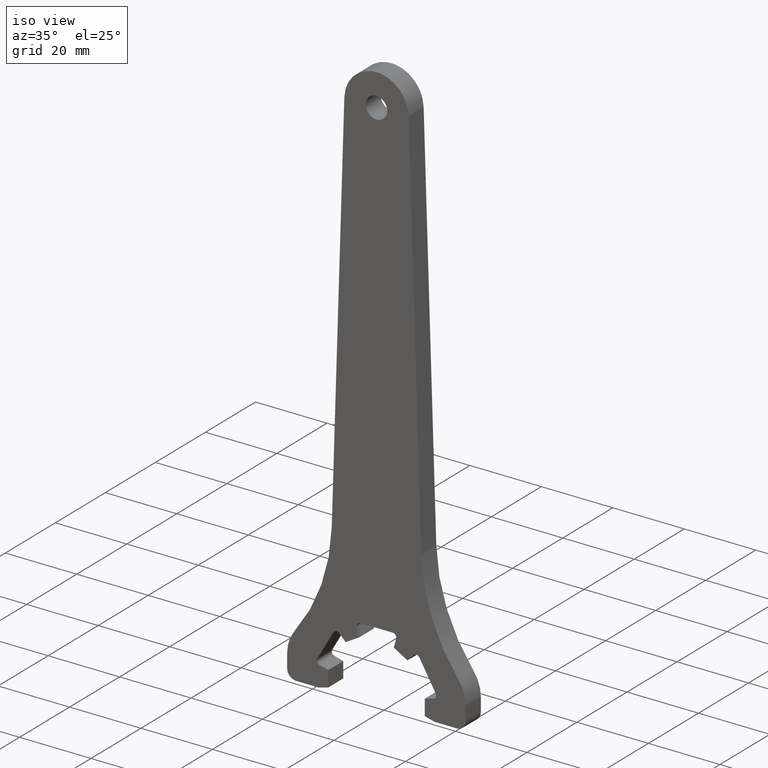
[diagram: clean part render]
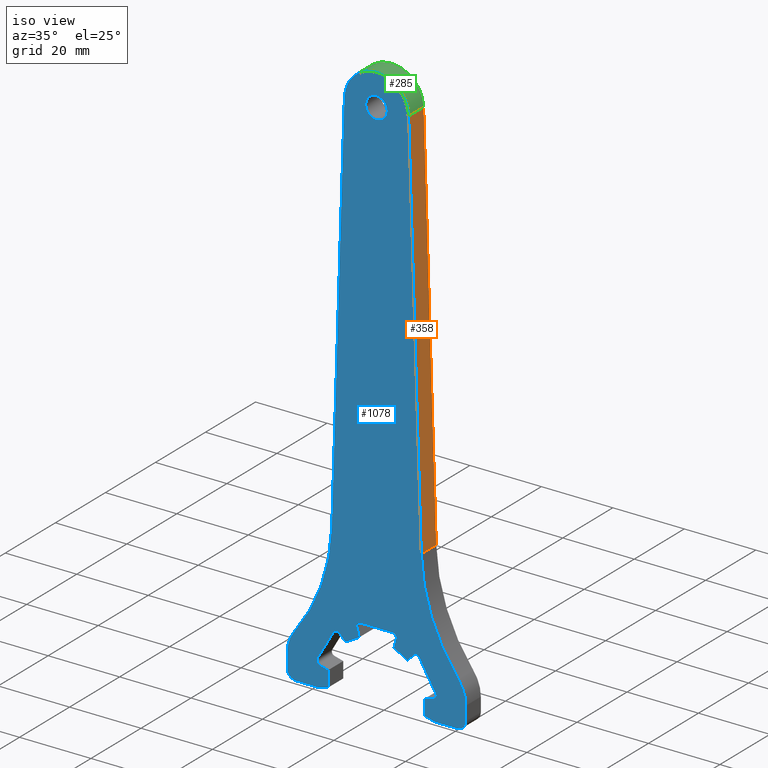
[diagram: same view with three faces highlighted in distinct colors, each labeled with its STEP entity id]
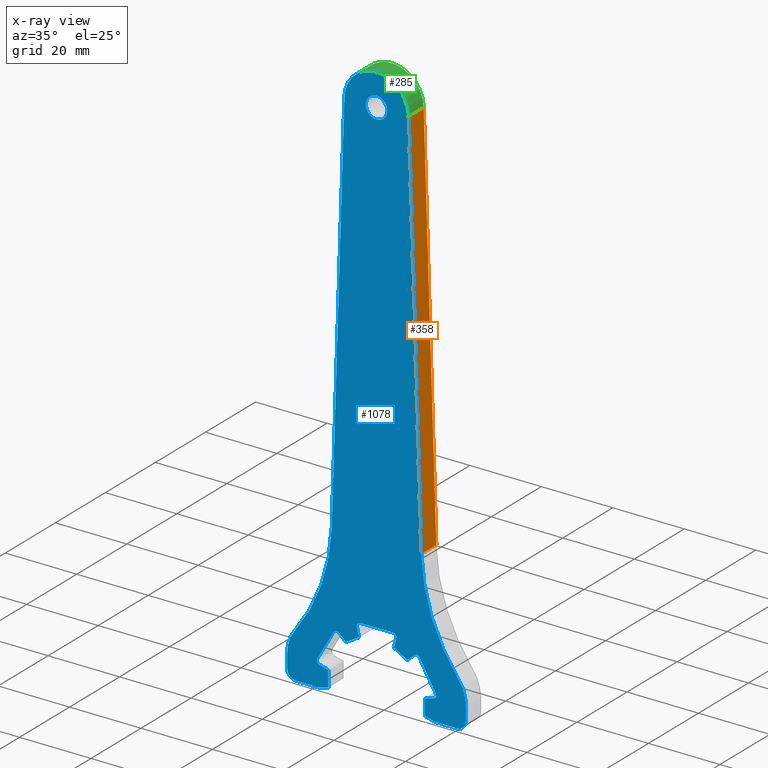
[diagram: x-ray of the same camera — body ghosted, the three highlighted faces saturated]
A machine part, iso view with three faces highlighted in distinct colors.
The next image is the same camera in x-ray (body ghosted, the three faces saturated) — at least one of them is partly hidden behind the body in this view.
Their STEP definitions:

[orange] entity #358 — the highlighted planar face has unit normal (-0.9995, 0, -0.0321).
#40 = CARTESIAN_POINT ( 'NONE',  ( 8.995353281733338600, 3.000000000000000000, 148.3557527634169700 ) ) ;
#86 = LINE ( 'NONE', #1297, #350 ) ;
#104 = ORIENTED_EDGE ( 'NONE', *, *, #1181, .T. ) ;
#155 = DIRECTION ( 'NONE',  ( -0.0000000000000000000, -1.000000000000000000, -0.0000000000000000000 ) ) ;
#186 = EDGE_CURVE ( 'NONE', #423, #1176, #86, .T. ) ;
#209 = VERTEX_POINT ( 'NONE', #826 ) ;
#222 = ORIENTED_EDGE ( 'NONE', *, *, #1025, .T. ) ;
#225 = VECTOR ( 'NONE', #155, 1000.000000000000000 ) ;
#232 = VERTEX_POINT ( 'NONE', #504 ) ;
#264 = CARTESIAN_POINT ( 'NONE',  ( 12.52581510148203800, 3.000000000000000000, 38.53197360864291500 ) ) ;
#298 = VECTOR ( 'NONE', #1172, 1000.000000000000000 ) ;
#350 = VECTOR ( 'NONE', #695, 1000.000000000000000 ) ;
#358 = ADVANCED_FACE ( 'NONE', ( #705 ), #1115, .F. ) ;
#423 = VERTEX_POINT ( 'NONE', #40 ) ;
#432 = CARTESIAN_POINT ( 'NONE',  ( 13.75027770088628300, -3.000000000000000000, 0.4420247673821802700 ) ) ;
#496 = LINE ( 'NONE', #1170, #225 ) ;
#504 = CARTESIAN_POINT ( 'NONE',  ( 8.995353281733338600, -3.000000000000000000, 148.3557527634169700 ) ) ;
#514 = EDGE_CURVE ( 'NONE', #1176, #209, #552, .T. ) ;
#515 = VECTOR ( 'NONE', #1050, 1000.000000000000000 ) ;
#552 = LINE ( 'NONE', #264, #298 ) ;
#649 = EDGE_LOOP ( 'NONE', ( #222, #689, #924, #104 ) ) ;
#689 = ORIENTED_EDGE ( 'NONE', *, *, #514, .F. ) ;
#695 = DIRECTION ( 'NONE',  ( 0.03213000920477063900, 0.0000000000000000000, -0.9994836979703577400 ) ) ;
#705 = FACE_OUTER_BOUND ( 'NONE', #649, .T. ) ;
#803 = DIRECTION ( 'NONE',  ( -0.03213000920477063900, 0.0000000000000000000, 0.9994836979703577400 ) ) ;
#822 = LINE ( 'NONE', #432, #515 ) ;
#826 = CARTESIAN_POINT ( 'NONE',  ( 12.52581510148203800, -3.000000000000000000, 38.53197360864291500 ) ) ;
#876 = CARTESIAN_POINT ( 'NONE',  ( 13.75027770088628300, 3.000000000000000000, 0.4420247673821802700 ) ) ;
#924 = ORIENTED_EDGE ( 'NONE', *, *, #186, .F. ) ;
#1002 = DIRECTION ( 'NONE',  ( -0.9994836979703577400, 0.0000000000000000000, -0.03213000920477063900 ) ) ;
#1025 = EDGE_CURVE ( 'NONE', #232, #209, #822, .T. ) ;
#1050 = DIRECTION ( 'NONE',  ( 0.03213000920477063900, 0.0000000000000000000, -0.9994836979703577400 ) ) ;
#1115 = PLANE ( 'NONE',  #1266 ) ;
#1170 = CARTESIAN_POINT ( 'NONE',  ( 8.995353281733338600, 3.000000000000000000, 148.3557527634169700 ) ) ;
#1172 = DIRECTION ( 'NONE',  ( -0.0000000000000000000, -1.000000000000000000, -0.0000000000000000000 ) ) ;
#1176 = VERTEX_POINT ( 'NONE', #1277 ) ;
#1181 = EDGE_CURVE ( 'NONE', #423, #232, #496, .T. ) ;
#1266 = AXIS2_PLACEMENT_3D ( 'NONE', #876, #1002, #803 ) ;
#1277 = CARTESIAN_POINT ( 'NONE',  ( 12.52581510148203800, 3.000000000000000000, 38.53197360864291500 ) ) ;
#1297 = CARTESIAN_POINT ( 'NONE',  ( 13.75027770088628300, 3.000000000000000000, 0.4420247673821802700 ) ) ;

[blue] entity #1078 — the highlighted planar face has unit normal (0, 1, -0).
#3 = EDGE_CURVE ( 'NONE', #838, #813, #335, .T. ) ;
#7 = VECTOR ( 'NONE', #607, 1000.000000000000000 ) ;
#10 = ORIENTED_EDGE ( 'NONE', *, *, #85, .T. ) ;
#12 = AXIS2_PLACEMENT_3D ( 'NONE', #80, #67, #1099 ) ;
#15 = LINE ( 'NONE', #733, #41 ) ;
#17 = LINE ( 'NONE', #203, #1070 ) ;
#19 = EDGE_CURVE ( 'NONE', #372, #736, #312, .T. ) ;
#21 = CARTESIAN_POINT ( 'NONE',  ( 4.535250400092505400, -3.000000000000000000, 15.50000000000029100 ) ) ;
#23 = AXIS2_PLACEMENT_3D ( 'NONE', #1112, #494, #1214 ) ;
#30 = DIRECTION ( 'NONE',  ( 0.0000000000000000000, 1.000000000000000000, -0.0000000000000000000 ) ) ;
#32 = CARTESIAN_POINT ( 'NONE',  ( 0.0000000000000000000, -3.000000000000000000, 0.0000000000000000000 ) ) ;
#33 = VERTEX_POINT ( 'NONE', #1019 ) ;
#34 = EDGE_CURVE ( 'NONE', #456, #370, #278, .T. ) ;
#37 = CARTESIAN_POINT ( 'NONE',  ( 13.49999999999995700, -3.000000000000000000, 2.199999999999979700 ) ) ;
#41 = VECTOR ( 'NONE', #944, 1000.000000000000100 ) ;
#50 = ORIENTED_EDGE ( 'NONE', *, *, #295, .F. ) ;
#58 = LINE ( 'NONE', #1066, #1119 ) ;
#59 = VECTOR ( 'NONE', #907, 1000.000000000000000 ) ;
#61 = DIRECTION ( 'NONE',  ( 1.000000000000000000, -0.0000000000000000000, 0.0000000000000000000 ) ) ;
#63 = CARTESIAN_POINT ( 'NONE',  ( -13.49999999999995700, -3.000000000000000000, 2.199999999999979700 ) ) ;
#64 = VERTEX_POINT ( 'NONE', #793 ) ;
#66 = EDGE_CURVE ( 'NONE', #835, #988, #508, .T. ) ;
#67 = DIRECTION ( 'NONE',  ( 0.0000000000000000000, 1.000000000000000000, -0.0000000000000000000 ) ) ;
#71 = ORIENTED_EDGE ( 'NONE', *, *, #1005, .F. ) ;
#79 = CARTESIAN_POINT ( 'NONE',  ( -11.15576855861261100, -3.000000000000000000, 11.67764205900390100 ) ) ;
#80 = CARTESIAN_POINT ( 'NONE',  ( 1.110223024625156500E-013, -3.000000000000000000, 148.0665826805740400 ) ) ;
#83 = CIRCLE ( 'NONE', #23, 1.000000000000114600 ) ;
#85 = EDGE_CURVE ( 'NONE', #587, #721, #1029, .T. ) ;
#91 = CARTESIAN_POINT ( 'NONE',  ( -13.49999999999995700, -3.000000000000000000, -2.199999999999979700 ) ) ;
#99 = LINE ( 'NONE', #445, #1144 ) ;
#112 = CARTESIAN_POINT ( 'NONE',  ( -4.844744111674348400, -3.000000000000000000, 12.79134295108974600 ) ) ;
#113 = ORIENTED_EDGE ( 'NONE', *, *, #1237, .T. ) ;
#115 = CARTESIAN_POINT ( 'NONE',  ( -12.02179396239705500, -3.000000000000000000, 12.17764205900384600 ) ) ;
#116 = DIRECTION ( 'NONE',  ( 0.0000000000000000000, 0.0000000000000000000, 1.000000000000000000 ) ) ;
#150 = CARTESIAN_POINT ( 'NONE',  ( 25.00000000000002100, -3.000000000000000000, -0.4334173194260326800 ) ) ;
#163 = VECTOR ( 'NONE', #529, 1000.000000000000000 ) ;
#167 = ORIENTED_EDGE ( 'NONE', *, *, #922, .T. ) ;
#168 = CARTESIAN_POINT ( 'NONE',  ( 11.15576855861216600, -3.000000000000000000, 11.67764205900367900 ) ) ;
#172 = DIRECTION ( 'NONE',  ( -1.000000000000000000, 0.0000000000000000000, 0.0000000000000000000 ) ) ;
#175 = DIRECTION ( 'NONE',  ( 0.0000000000000000000, 1.000000000000000000, -0.0000000000000000000 ) ) ;
#187 = DIRECTION ( 'NONE',  ( 0.0000000000000000000, 0.0000000000000000000, 1.000000000000000000 ) ) ;
#193 = CARTESIAN_POINT ( 'NONE',  ( -15.00000000000001400, -3.000000000000000000, 3.481278322343017700 ) ) ;
#200 = CIRCLE ( 'NONE', #989, 50.00000000000004300 ) ;
#201 = VECTOR ( 'NONE', #676, 1000.000000000000000 ) ;
#203 = CARTESIAN_POINT ( 'NONE',  ( 13.49999999999995700, -3.000000000000000000, 0.0000000000000000000 ) ) ;
#208 = EDGE_CURVE ( 'NONE', #753, #1062, #1133, .T. ) ;
#209 = VERTEX_POINT ( 'NONE', #826 ) ;
#213 = LINE ( 'NONE', #1185, #1260 ) ;
#215 = VECTOR ( 'NONE', #404, 1000.000000000000100 ) ;
#223 = EDGE_CURVE ( 'NONE', #647, #734, #1160, .T. ) ;
#224 = FACE_OUTER_BOUND ( 'NONE', #1216, .T. ) ;
#226 = LINE ( 'NONE', #1307, #727 ) ;
#232 = VERTEX_POINT ( 'NONE', #504 ) ;
#234 = ORIENTED_EDGE ( 'NONE', *, *, #34, .F. ) ;
#240 = EDGE_CURVE ( 'NONE', #702, #1225, #17, .T. ) ;
#247 = DIRECTION ( 'NONE',  ( -0.4999999999999975600, 0.0000000000000000000, 0.8660254037844400400 ) ) ;
#261 = CARTESIAN_POINT ( 'NONE',  ( 10.44866177742570600, -3.000000000000000000, 12.38474884019003000 ) ) ;
#265 = DIRECTION ( 'NONE',  ( 0.0000000000000000000, 1.000000000000000000, -0.0000000000000000000 ) ) ;
#270 = DIRECTION ( 'NONE',  ( 0.0000000000000000000, 0.0000000000000000000, 1.000000000000000000 ) ) ;
#278 = LINE ( 'NONE', #1230, #7 ) ;
#281 = EDGE_CURVE ( 'NONE', #736, #513, #1106, .T. ) ;
#284 = ORIENTED_EDGE ( 'NONE', *, *, #1025, .F. ) ;
#286 = VERTEX_POINT ( 'NONE', #1318 ) ;
#287 = AXIS2_PLACEMENT_3D ( 'NONE', #817, #612, #116 ) ;
#288 = DIRECTION ( 'NONE',  ( 0.0000000000000000000, 1.000000000000000000, -0.0000000000000000000 ) ) ;
#294 = EDGE_CURVE ( 'NONE', #377, #513, #226, .T. ) ;
#295 = EDGE_CURVE ( 'NONE', #608, #372, #497, .T. ) ;
#301 = DIRECTION ( 'NONE',  ( 0.0000000000000000000, 0.0000000000000000000, 1.000000000000000000 ) ) ;
#305 = EDGE_CURVE ( 'NONE', #446, #616, #1280, .T. ) ;
#312 = LINE ( 'NONE', #722, #811 ) ;
#322 = ORIENTED_EDGE ( 'NONE', *, *, #534, .F. ) ;
#333 = EDGE_LOOP ( 'NONE', ( #932, #679 ) ) ;
#335 = LINE ( 'NONE', #396, #59 ) ;
#336 = ORIENTED_EDGE ( 'NONE', *, *, #281, .F. ) ;
#343 = DIRECTION ( 'NONE',  ( 0.0000000000000000000, 0.0000000000000000000, 1.000000000000000000 ) ) ;
#344 = ORIENTED_EDGE ( 'NONE', *, *, #934, .T. ) ;
#346 = DIRECTION ( 'NONE',  ( 0.2588190451025669200, 0.0000000000000000000, 0.9659258262890559900 ) ) ;
#349 = CIRCLE ( 'NONE', #1142, 10.00000000000005300 ) ;
#354 = DIRECTION ( 'NONE',  ( -1.000000000000000000, 0.0000000000000000000, 0.0000000000000000000 ) ) ;
#362 = CARTESIAN_POINT ( 'NONE',  ( 0.3543285244547755800, -3.000000000000000000, -1.322372055836424000 ) ) ;
#363 = CARTESIAN_POINT ( 'NONE',  ( -24.99999999999996800, -3.000000000000000000, -0.4334173194260326800 ) ) ;
#364 = CARTESIAN_POINT ( 'NONE',  ( 13.49999999999995700, -3.000000000000000000, -2.199999999999979700 ) ) ;
#367 = CIRCLE ( 'NONE', #599, 1.000000000000025100 ) ;
#370 = VERTEX_POINT ( 'NONE', #501 ) ;
#372 = VERTEX_POINT ( 'NONE', #473 ) ;
#377 = VERTEX_POINT ( 'NONE', #1089 ) ;
#382 = CARTESIAN_POINT ( 'NONE',  ( 6.749999999999940500, -3.000000000000000000, 11.69134295108994900 ) ) ;
#390 = ORIENTED_EDGE ( 'NONE', *, *, #66, .T. ) ;
#396 = CARTESIAN_POINT ( 'NONE',  ( -24.99999999999996800, -3.000000000000000000, -0.0000000000000000000 ) ) ;
#404 = DIRECTION ( 'NONE',  ( -0.9659258262890635400, 0.0000000000000000000, 0.2588190451025384500 ) ) ;
#410 = EDGE_CURVE ( 'NONE', #1062, #753, #444, .T. ) ;
#413 = LINE ( 'NONE', #580, #927 ) ;
#424 = LINE ( 'NONE', #964, #458 ) ;
#427 = LINE ( 'NONE', #935, #163 ) ;
#429 = ORIENTED_EDGE ( 'NONE', *, *, #1229, .T. ) ;
#431 = ORIENTED_EDGE ( 'NONE', *, *, #305, .F. ) ;
#432 = CARTESIAN_POINT ( 'NONE',  ( 13.75027770088628300, -3.000000000000000000, 0.4420247673821802700 ) ) ;
#444 = CIRCLE ( 'NONE', #12, 2.999999999999891600 ) ;
#445 = CARTESIAN_POINT ( 'NONE',  ( 14.28941916244356800, -3.000000000000000000, 8.250000000000136800 ) ) ;
#446 = VERTEX_POINT ( 'NONE', #860 ) ;
#453 = CARTESIAN_POINT ( 'NONE',  ( 1.110223024625156500E-013, -3.000000000000000000, 145.0665826805741600 ) ) ;
#455 = CARTESIAN_POINT ( 'NONE',  ( 15.94983800380777200, -3.000000000000000000, 2.856432114707213800 ) ) ;
#456 = VERTEX_POINT ( 'NONE', #112 ) ;
#458 = VECTOR ( 'NONE', #346, 999.9999999999998900 ) ;
#460 = VECTOR ( 'NONE', #660, 999.9999999999998900 ) ;
#462 = CIRCLE ( 'NONE', #1242, 0.9999999999998621100 ) ;
#463 = CARTESIAN_POINT ( 'NONE',  ( 0.3543285244549497200, -3.000000000000000000, 1.322372055836883700 ) ) ;
#467 = CARTESIAN_POINT ( 'NONE',  ( -13.75027770088628600, -3.000000000000000000, 0.4420247673822012000 ) ) ;
#472 = CARTESIAN_POINT ( 'NONE',  ( -0.3543285244551301900, -3.000000000000000000, -1.322372055837360200 ) ) ;
#473 = CARTESIAN_POINT ( 'NONE',  ( 25.00000000000002100, -3.000000000000000000, 3.481278322343461800 ) ) ;
#489 = AXIS2_PLACEMENT_3D ( 'NONE', #948, #30, #865 ) ;
#492 = EDGE_CURVE ( 'NONE', #702, #556, #930, .T. ) ;
#494 = DIRECTION ( 'NONE',  ( 0.0000000000000000000, 1.000000000000000000, -0.0000000000000000000 ) ) ;
#497 = CIRCLE ( 'NONE', #844, 10.00000000000001600 ) ;
#501 = CARTESIAN_POINT ( 'NONE',  ( -8.655255888325609000, -3.000000000000000000, 10.59134295108999000 ) ) ;
#502 = CARTESIAN_POINT ( 'NONE',  ( -15.94983800380745200, -3.000000000000000000, 2.856432114707319900 ) ) ;
#504 = CARTESIAN_POINT ( 'NONE',  ( 8.995353281733338600, -3.000000000000000000, 148.3557527634169700 ) ) ;
#505 = ORIENTED_EDGE ( 'NONE', *, *, #223, .T. ) ;
#508 = LINE ( 'NONE', #472, #215 ) ;
#512 = ORIENTED_EDGE ( 'NONE', *, *, #3, .T. ) ;
#513 = VERTEX_POINT ( 'NONE', #978 ) ;
#515 = VECTOR ( 'NONE', #1050, 1000.000000000000000 ) ;
#529 = DIRECTION ( 'NONE',  ( -0.7071067811865584500, 0.0000000000000000000, 0.7071067811865365800 ) ) ;
#530 = DIRECTION ( 'NONE',  ( -0.9659258262890718600, 0.0000000000000000000, -0.2588190451025074700 ) ) ;
#534 = EDGE_CURVE ( 'NONE', #647, #232, #825, .T. ) ;
#535 = ORIENTED_EDGE ( 'NONE', *, *, #19, .F. ) ;
#543 = DIRECTION ( 'NONE',  ( 0.9659258262890825200, 0.0000000000000000000, 0.2588190451024677300 ) ) ;
#546 = CARTESIAN_POINT ( 'NONE',  ( -22.49999999999996400, -3.000000000000000000, -2.933417319425757300 ) ) ;
#547 = ORIENTED_EDGE ( 'NONE', *, *, #240, .T. ) ;
#556 = VERTEX_POINT ( 'NONE', #455 ) ;
#558 = ORIENTED_EDGE ( 'NONE', *, *, #1064, .F. ) ;
#564 = CARTESIAN_POINT ( 'NONE',  ( -62.49999999999988600, -3.000000000000000000, 40.13847406888149300 ) ) ;
#568 = VECTOR ( 'NONE', #756, 1000.000000000000100 ) ;
#574 = VERTEX_POINT ( 'NONE', #261 ) ;
#577 = EDGE_CURVE ( 'NONE', #286, #863, #800, .T. ) ;
#580 = CARTESIAN_POINT ( 'NONE',  ( -1.322372055836622300, -3.000000000000000000, -0.3543285244549742000 ) ) ;
#583 = ORIENTED_EDGE ( 'NONE', *, *, #650, .F. ) ;
#585 = VECTOR ( 'NONE', #875, 1000.000000000000100 ) ;
#587 = VERTEX_POINT ( 'NONE', #115 ) ;
#591 = DIRECTION ( 'NONE',  ( 0.0000000000000000000, 1.000000000000000000, -0.0000000000000000000 ) ) ;
#597 = DIRECTION ( 'NONE',  ( 0.0000000000000000000, 0.0000000000000000000, 1.000000000000000000 ) ) ;
#599 = AXIS2_PLACEMENT_3D ( 'NONE', #866, #265, #980 ) ;
#607 = DIRECTION ( 'NONE',  ( -0.8660254037844471500, 0.0000000000000000000, -0.4999999999999852900 ) ) ;
#608 = VERTEX_POINT ( 'NONE', #1143 ) ;
#612 = DIRECTION ( 'NONE',  ( 0.0000000000000000000, 1.000000000000000000, -0.0000000000000000000 ) ) ;
#613 = ORIENTED_EDGE ( 'NONE', *, *, #707, .F. ) ;
#616 = VERTEX_POINT ( 'NONE', #1063 ) ;
#628 = EDGE_CURVE ( 'NONE', #1195, #1165, #462, .T. ) ;
#629 = DIRECTION ( 'NONE',  ( 0.0000000000000000000, 1.000000000000000000, -0.0000000000000000000 ) ) ;
#635 = AXIS2_PLACEMENT_3D ( 'NONE', #32, #950, #343 ) ;
#642 = CIRCLE ( 'NONE', #1221, 50.00000000000007100 ) ;
#647 = VERTEX_POINT ( 'NONE', #1097 ) ;
#648 = CARTESIAN_POINT ( 'NONE',  ( -12.52581510148198500, -3.000000000000000000, 38.53197360864291500 ) ) ;
#650 = EDGE_CURVE ( 'NONE', #370, #721, #427, .T. ) ;
#660 = DIRECTION ( 'NONE',  ( 0.9659258262890733100, 0.0000000000000000000, -0.2588190451025025300 ) ) ;
#666 = DIRECTION ( 'NONE',  ( 0.0000000000000000000, 0.0000000000000000000, 1.000000000000000000 ) ) ;
#676 = DIRECTION ( 'NONE',  ( -0.8660254037844411500, 0.0000000000000000000, 0.4999999999999958400 ) ) ;
#679 = ORIENTED_EDGE ( 'NONE', *, *, #410, .T. ) ;
#687 = AXIS2_PLACEMENT_3D ( 'NONE', #1298, #1018, #597 ) ;
#691 = DIRECTION ( 'NONE',  ( -0.2588190451025669200, 0.0000000000000000000, 0.9659258262890559900 ) ) ;
#696 = CARTESIAN_POINT ( 'NONE',  ( 15.00000000000001400, -3.000000000000000000, 3.481278322343017700 ) ) ;
#698 = ORIENTED_EDGE ( 'NONE', *, *, #738, .T. ) ;
#702 = VERTEX_POINT ( 'NONE', #37 ) ;
#707 = EDGE_CURVE ( 'NONE', #64, #33, #99, .T. ) ;
#712 = DIRECTION ( 'NONE',  ( 0.0000000000000000000, 0.0000000000000000000, 1.000000000000000000 ) ) ;
#721 = VERTEX_POINT ( 'NONE', #962 ) ;
#722 = CARTESIAN_POINT ( 'NONE',  ( 25.00000000000002100, -3.000000000000000000, 0.0000000000000000000 ) ) ;
#723 = VERTEX_POINT ( 'NONE', #546 ) ;
#724 = EDGE_CURVE ( 'NONE', #835, #968, #58, .T. ) ;
#727 = VECTOR ( 'NONE', #61, 1000.000000000000000 ) ;
#733 = CARTESIAN_POINT ( 'NONE',  ( -14.28941916244337500, -3.000000000000000000, 8.250000000000085300 ) ) ;
#734 = VERTEX_POINT ( 'NONE', #648 ) ;
#736 = VERTEX_POINT ( 'NONE', #150 ) ;
#737 = CARTESIAN_POINT ( 'NONE',  ( -0.3543285244549745900, -3.000000000000000000, 1.322372055836949200 ) ) ;
#738 = EDGE_CURVE ( 'NONE', #446, #574, #914, .T. ) ;
#749 = EDGE_CURVE ( 'NONE', #286, #1165, #831, .T. ) ;
#753 = VERTEX_POINT ( 'NONE', #453 ) ;
#756 = DIRECTION ( 'NONE',  ( 0.7071067811865474600, 0.0000000000000000000, 0.7071067811865474600 ) ) ;
#759 = LINE ( 'NONE', #737, #1278 ) ;
#764 = CARTESIAN_POINT ( 'NONE',  ( -16.55704436248956000, -3.000000000000000000, 4.322357940996557300 ) ) ;
#766 = ORIENTED_EDGE ( 'NONE', *, *, #1130, .F. ) ;
#769 = CARTESIAN_POINT ( 'NONE',  ( -16.23715069924808700, -3.000000000000000000, -2.933417319425758200 ) ) ;
#777 = CARTESIAN_POINT ( 'NONE',  ( -24.99999999999996800, -3.000000000000000000, 3.481278322343461800 ) ) ;
#782 = EDGE_CURVE ( 'NONE', #64, #556, #367, .T. ) ;
#793 = CARTESIAN_POINT ( 'NONE',  ( 16.55704436248989700, -3.000000000000000000, 4.322357940996336200 ) ) ;
#800 = CIRCLE ( 'NONE', #967, 0.9999999999998586700 ) ;
#801 = DIRECTION ( 'NONE',  ( 0.0000000000000000000, 1.000000000000000000, -0.0000000000000000000 ) ) ;
#811 = VECTOR ( 'NONE', #812, 1000.000000000000000 ) ;
#812 = DIRECTION ( 'NONE',  ( 0.0000000000000000000, 0.0000000000000000000, -1.000000000000000000 ) ) ;
#813 = VERTEX_POINT ( 'NONE', #363 ) ;
#817 = CARTESIAN_POINT ( 'NONE',  ( 1.110223024625156500E-013, -3.000000000000000000, 148.0665826805740400 ) ) ;
#822 = LINE ( 'NONE', #432, #515 ) ;
#825 = CIRCLE ( 'NONE', #489, 9.000000000000007100 ) ;
#826 = CARTESIAN_POINT ( 'NONE',  ( 12.52581510148203800, -3.000000000000000000, 38.53197360864291500 ) ) ;
#831 = LINE ( 'NONE', #855, #871 ) ;
#834 = CARTESIAN_POINT ( 'NONE',  ( 1.113896965022598500E-013, -3.000000000000000000, 151.0665826805739300 ) ) ;
#835 = VERTEX_POINT ( 'NONE', #63 ) ;
#837 = EDGE_CURVE ( 'NONE', #1238, #723, #213, .T. ) ;
#838 = VERTEX_POINT ( 'NONE', #777 ) ;
#844 = AXIS2_PLACEMENT_3D ( 'NONE', #696, #175, #187 ) ;
#855 = CARTESIAN_POINT ( 'NONE',  ( 0.0000000000000000000, -3.000000000000000000, 16.49999999999995700 ) ) ;
#859 = ORIENTED_EDGE ( 'NONE', *, *, #577, .T. ) ;
#860 = CARTESIAN_POINT ( 'NONE',  ( 8.655255888325664100, -3.000000000000000000, 10.59134295108998500 ) ) ;
#863 = VERTEX_POINT ( 'NONE', #1300 ) ;
#864 = DIRECTION ( 'NONE',  ( 0.0000000000000000000, 0.0000000000000000000, 1.000000000000000000 ) ) ;
#865 = DIRECTION ( 'NONE',  ( 0.0000000000000000000, 0.0000000000000000000, 1.000000000000000000 ) ) ;
#866 = CARTESIAN_POINT ( 'NONE',  ( 15.69101895870533900, -3.000000000000000000, 3.822357940996168300 ) ) ;
#871 = VECTOR ( 'NONE', #354, 1000.000000000000000 ) ;
#872 = DIRECTION ( 'NONE',  ( 0.0000000000000000000, 1.000000000000000000, -0.0000000000000000000 ) ) ;
#874 = ORIENTED_EDGE ( 'NONE', *, *, #628, .T. ) ;
#875 = DIRECTION ( 'NONE',  ( -0.03213000920477214500, 0.0000000000000000000, -0.9994836979703576300 ) ) ;
#885 = EDGE_CURVE ( 'NONE', #723, #813, #1233, .T. ) ;
#887 = CARTESIAN_POINT ( 'NONE',  ( -22.49999999999996400, -3.000000000000000000, -0.4334173194260326800 ) ) ;
#902 = DIRECTION ( 'NONE',  ( 0.0000000000000000000, 0.0000000000000000000, -1.000000000000000000 ) ) ;
#904 = DIRECTION ( 'NONE',  ( 0.0000000000000000000, 1.000000000000000000, -0.0000000000000000000 ) ) ;
#907 = DIRECTION ( 'NONE',  ( 0.0000000000000000000, 0.0000000000000000000, -1.000000000000000000 ) ) ;
#909 = DIRECTION ( 'NONE',  ( 0.0000000000000000000, 0.0000000000000000000, 1.000000000000000000 ) ) ;
#914 = LINE ( 'NONE', #1274, #568 ) ;
#922 = EDGE_CURVE ( 'NONE', #456, #1195, #413, .T. ) ;
#927 = VECTOR ( 'NONE', #691, 999.9999999999998900 ) ;
#930 = LINE ( 'NONE', #362, #1134 ) ;
#932 = ORIENTED_EDGE ( 'NONE', *, *, #208, .T. ) ;
#934 = EDGE_CURVE ( 'NONE', #608, #209, #642, .T. ) ;
#935 = CARTESIAN_POINT ( 'NONE',  ( 0.9680435313823233500, -3.000000000000000000, 0.9680435313823533300 ) ) ;
#944 = DIRECTION ( 'NONE',  ( -0.5000000000000003300, 0.0000000000000000000, -0.8660254037844383700 ) ) ;
#945 = ORIENTED_EDGE ( 'NONE', *, *, #294, .T. ) ;
#947 = EDGE_CURVE ( 'NONE', #838, #1208, #349, .T. ) ;
#948 = CARTESIAN_POINT ( 'NONE',  ( 1.110223024625156500E-013, -3.000000000000000000, 148.0665826805740400 ) ) ;
#950 = DIRECTION ( 'NONE',  ( 0.0000000000000000000, 1.000000000000000000, -0.0000000000000000000 ) ) ;
#958 = EDGE_CURVE ( 'NONE', #988, #1212, #83, .T. ) ;
#962 = CARTESIAN_POINT ( 'NONE',  ( -10.44866177742615000, -3.000000000000000000, 12.38474884019047200 ) ) ;
#964 = CARTESIAN_POINT ( 'NONE',  ( 1.322372055836358800, -3.000000000000000000, -0.3543285244549035400 ) ) ;
#967 = AXIS2_PLACEMENT_3D ( 'NONE', #21, #629, #864 ) ;
#968 = VERTEX_POINT ( 'NONE', #91 ) ;
#970 = CARTESIAN_POINT ( 'NONE',  ( -4.535250400092783400, -3.000000000000000000, 16.49999999999995700 ) ) ;
#975 = CIRCLE ( 'NONE', #1060, 1.000000000000240300 ) ;
#978 = CARTESIAN_POINT ( 'NONE',  ( 22.50000000000002100, -3.000000000000000000, -2.933417319425757300 ) ) ;
#980 = DIRECTION ( 'NONE',  ( 0.0000000000000000000, 0.0000000000000000000, 1.000000000000000000 ) ) ;
#988 = VERTEX_POINT ( 'NONE', #502 ) ;
#989 = AXIS2_PLACEMENT_3D ( 'NONE', #564, #1291, #666 ) ;
#1003 = DIRECTION ( 'NONE',  ( 0.0000000000000000000, 0.0000000000000000000, 1.000000000000000000 ) ) ;
#1005 = EDGE_CURVE ( 'NONE', #587, #1212, #15, .T. ) ;
#1014 = FACE_BOUND ( 'NONE', #333, .T. ) ;
#1015 = LINE ( 'NONE', #463, #460 ) ;
#1018 = DIRECTION ( 'NONE',  ( 0.0000000000000000000, 1.000000000000000000, -0.0000000000000000000 ) ) ;
#1019 = CARTESIAN_POINT ( 'NONE',  ( 12.02179396239716900, -3.000000000000000000, 12.17764205900406800 ) ) ;
#1021 = AXIS2_PLACEMENT_3D ( 'NONE', #887, #288, #1003 ) ;
#1025 = EDGE_CURVE ( 'NONE', #232, #209, #822, .T. ) ;
#1029 = CIRCLE ( 'NONE', #1261, 0.9999999999999662500 ) ;
#1044 = ORIENTED_EDGE ( 'NONE', *, *, #837, .F. ) ;
#1050 = DIRECTION ( 'NONE',  ( 0.03213000920477063900, 0.0000000000000000000, -0.9994836979703577400 ) ) ;
#1051 = PLANE ( 'NONE',  #635 ) ;
#1057 = ORIENTED_EDGE ( 'NONE', *, *, #492, .F. ) ;
#1060 = AXIS2_PLACEMENT_3D ( 'NONE', #168, #872, #270 ) ;
#1062 = VERTEX_POINT ( 'NONE', #834 ) ;
#1063 = CARTESIAN_POINT ( 'NONE',  ( 4.844744111674126300, -3.000000000000000000, 12.79134295108996400 ) ) ;
#1064 = EDGE_CURVE ( 'NONE', #968, #1238, #759, .T. ) ;
#1066 = CARTESIAN_POINT ( 'NONE',  ( -13.49999999999995700, -3.000000000000000000, -0.0000000000000000000 ) ) ;
#1070 = VECTOR ( 'NONE', #902, 1000.000000000000000 ) ;
#1078 = ADVANCED_FACE ( 'NONE', ( #1014, #224 ), #1051, .F. ) ;
#1089 = CARTESIAN_POINT ( 'NONE',  ( 16.23715069924813600, -3.000000000000000000, -2.933417319425757800 ) ) ;
#1097 = CARTESIAN_POINT ( 'NONE',  ( -8.995353281733120100, -3.000000000000000000, 148.3557527634169700 ) ) ;
#1099 = DIRECTION ( 'NONE',  ( 0.0000000000000000000, 0.0000000000000000000, 1.000000000000000000 ) ) ;
#1106 = CIRCLE ( 'NONE', #687, 2.499999999999863200 ) ;
#1112 = CARTESIAN_POINT ( 'NONE',  ( -15.69101895870495000, -3.000000000000000000, 3.822357940996390400 ) ) ;
#1117 = DIRECTION ( 'NONE',  ( 0.0000000000000000000, 1.000000000000000000, -0.0000000000000000000 ) ) ;
#1119 = VECTOR ( 'NONE', #1163, 1000.000000000000000 ) ;
#1128 = ORIENTED_EDGE ( 'NONE', *, *, #782, .T. ) ;
#1130 = EDGE_CURVE ( 'NONE', #616, #863, #424, .T. ) ;
#1133 = CIRCLE ( 'NONE', #287, 2.999999999999891600 ) ;
#1134 = VECTOR ( 'NONE', #543, 1000.000000000000100 ) ;
#1138 = ORIENTED_EDGE ( 'NONE', *, *, #885, .F. ) ;
#1140 = ORIENTED_EDGE ( 'NONE', *, *, #749, .F. ) ;
#1142 = AXIS2_PLACEMENT_3D ( 'NONE', #193, #904, #301 ) ;
#1143 = CARTESIAN_POINT ( 'NONE',  ( 22.91666666666669600, -3.000000000000000000, 9.590810946766229300 ) ) ;
#1144 = VECTOR ( 'NONE', #247, 1000.000000000000000 ) ;
#1147 = ORIENTED_EDGE ( 'NONE', *, *, #947, .F. ) ;
#1160 = LINE ( 'NONE', #467, #585 ) ;
#1163 = DIRECTION ( 'NONE',  ( 0.0000000000000000000, 0.0000000000000000000, -1.000000000000000000 ) ) ;
#1165 = VERTEX_POINT ( 'NONE', #970 ) ;
#1175 = CARTESIAN_POINT ( 'NONE',  ( -5.501176226381854700, -3.000000000000000000, 15.24118095489756900 ) ) ;
#1185 = CARTESIAN_POINT ( 'NONE',  ( 0.0000000000000000000, -3.000000000000000000, -2.933417319425757300 ) ) ;
#1195 = VERTEX_POINT ( 'NONE', #1175 ) ;
#1207 = EDGE_CURVE ( 'NONE', #1225, #377, #1015, .T. ) ;
#1208 = VERTEX_POINT ( 'NONE', #1285 ) ;
#1210 = CARTESIAN_POINT ( 'NONE',  ( 62.49999999999988600, -3.000000000000000000, 40.13847406888149300 ) ) ;
#1212 = VERTEX_POINT ( 'NONE', #764 ) ;
#1214 = DIRECTION ( 'NONE',  ( 0.0000000000000000000, 0.0000000000000000000, 1.000000000000000000 ) ) ;
#1216 = EDGE_LOOP ( 'NONE', ( #344, #284, #322, #505, #429, #1147, #512, #1138, #1044, #558, #1241, #390, #1231, #71, #10, #583, #234, #167, #874, #1140, #859, #766, #431, #698, #113, #613, #1128, #1057, #547, #1292, #945, #336, #535, #50 ) ) ;
#1221 = AXIS2_PLACEMENT_3D ( 'NONE', #1210, #591, #1319 ) ;
#1225 = VERTEX_POINT ( 'NONE', #364 ) ;
#1229 = EDGE_CURVE ( 'NONE', #734, #1208, #200, .T. ) ;
#1230 = CARTESIAN_POINT ( 'NONE',  ( -6.749999999999772600, -3.000000000000000000, 11.69134295108998600 ) ) ;
#1231 = ORIENTED_EDGE ( 'NONE', *, *, #958, .T. ) ;
#1233 = CIRCLE ( 'NONE', #1021, 2.499999999999863200 ) ;
#1237 = EDGE_CURVE ( 'NONE', #574, #33, #975, .T. ) ;
#1238 = VERTEX_POINT ( 'NONE', #769 ) ;
#1241 = ORIENTED_EDGE ( 'NONE', *, *, #724, .F. ) ;
#1242 = AXIS2_PLACEMENT_3D ( 'NONE', #1305, #1117, #712 ) ;
#1260 = VECTOR ( 'NONE', #172, 1000.000000000000000 ) ;
#1261 = AXIS2_PLACEMENT_3D ( 'NONE', #79, #801, #909 ) ;
#1274 = CARTESIAN_POINT ( 'NONE',  ( -0.9680435313821622600, -3.000000000000000000, 0.9680435313821622600 ) ) ;
#1278 = VECTOR ( 'NONE', #530, 1000.000000000000000 ) ;
#1280 = LINE ( 'NONE', #382, #201 ) ;
#1285 = CARTESIAN_POINT ( 'NONE',  ( -22.91666666666676700, -3.000000000000000000, 9.590810946766188400 ) ) ;
#1291 = DIRECTION ( 'NONE',  ( 0.0000000000000000000, 1.000000000000000000, -0.0000000000000000000 ) ) ;
#1292 = ORIENTED_EDGE ( 'NONE', *, *, #1207, .T. ) ;
#1298 = CARTESIAN_POINT ( 'NONE',  ( 22.50000000000002100, -3.000000000000000000, -0.4334173194260326800 ) ) ;
#1300 = CARTESIAN_POINT ( 'NONE',  ( 5.501176226381631700, -3.000000000000000000, 15.24118095489779300 ) ) ;
#1305 = CARTESIAN_POINT ( 'NONE',  ( -4.535250400092783400, -3.000000000000000000, 15.50000000000029100 ) ) ;
#1307 = CARTESIAN_POINT ( 'NONE',  ( 0.0000000000000000000, -3.000000000000000000, -2.933417319425757300 ) ) ;
#1318 = CARTESIAN_POINT ( 'NONE',  ( 4.535250400092505400, -3.000000000000000000, 16.49999999999995700 ) ) ;
#1319 = DIRECTION ( 'NONE',  ( 0.0000000000000000000, 0.0000000000000000000, 1.000000000000000000 ) ) ;

[green] entity #285 — the highlighted cylindrical surface (partial cylindrical patch) has radius 9 mm, axis along (-0, -1, -0).
#30 = DIRECTION ( 'NONE',  ( 0.0000000000000000000, 1.000000000000000000, -0.0000000000000000000 ) ) ;
#40 = CARTESIAN_POINT ( 'NONE',  ( 8.995353281733338600, 3.000000000000000000, 148.3557527634169700 ) ) ;
#42 = VECTOR ( 'NONE', #1088, 1000.000000000000000 ) ;
#120 = EDGE_LOOP ( 'NONE', ( #412, #637, #466, #126 ) ) ;
#126 = ORIENTED_EDGE ( 'NONE', *, *, #211, .T. ) ;
#155 = DIRECTION ( 'NONE',  ( -0.0000000000000000000, -1.000000000000000000, -0.0000000000000000000 ) ) ;
#192 = DIRECTION ( 'NONE',  ( -0.0000000000000000000, -1.000000000000000000, -0.0000000000000000000 ) ) ;
#211 = EDGE_CURVE ( 'NONE', #937, #647, #324, .T. ) ;
#225 = VECTOR ( 'NONE', #155, 1000.000000000000000 ) ;
#232 = VERTEX_POINT ( 'NONE', #504 ) ;
#254 = FACE_OUTER_BOUND ( 'NONE', #120, .T. ) ;
#285 = ADVANCED_FACE ( 'NONE', ( #254 ), #1016, .T. ) ;
#311 = CIRCLE ( 'NONE', #457, 9.000000000000007100 ) ;
#324 = LINE ( 'NONE', #784, #42 ) ;
#359 = DIRECTION ( 'NONE',  ( 0.0000000000000000000, 1.000000000000000000, -0.0000000000000000000 ) ) ;
#412 = ORIENTED_EDGE ( 'NONE', *, *, #534, .T. ) ;
#423 = VERTEX_POINT ( 'NONE', #40 ) ;
#457 = AXIS2_PLACEMENT_3D ( 'NONE', #971, #359, #1075 ) ;
#466 = ORIENTED_EDGE ( 'NONE', *, *, #768, .F. ) ;
#489 = AXIS2_PLACEMENT_3D ( 'NONE', #948, #30, #865 ) ;
#496 = LINE ( 'NONE', #1170, #225 ) ;
#504 = CARTESIAN_POINT ( 'NONE',  ( 8.995353281733338600, -3.000000000000000000, 148.3557527634169700 ) ) ;
#534 = EDGE_CURVE ( 'NONE', #647, #232, #825, .T. ) ;
#590 = DIRECTION ( 'NONE',  ( 0.0000000000000000000, 0.0000000000000000000, -1.000000000000000000 ) ) ;
#637 = ORIENTED_EDGE ( 'NONE', *, *, #1181, .F. ) ;
#647 = VERTEX_POINT ( 'NONE', #1097 ) ;
#768 = EDGE_CURVE ( 'NONE', #937, #423, #311, .T. ) ;
#784 = CARTESIAN_POINT ( 'NONE',  ( -8.995353281733120100, 3.000000000000000000, 148.3557527634169700 ) ) ;
#825 = CIRCLE ( 'NONE', #489, 9.000000000000007100 ) ;
#865 = DIRECTION ( 'NONE',  ( 0.0000000000000000000, 0.0000000000000000000, 1.000000000000000000 ) ) ;
#925 = AXIS2_PLACEMENT_3D ( 'NONE', #992, #192, #590 ) ;
#937 = VERTEX_POINT ( 'NONE', #1007 ) ;
#948 = CARTESIAN_POINT ( 'NONE',  ( 1.110223024625156500E-013, -3.000000000000000000, 148.0665826805740400 ) ) ;
#971 = CARTESIAN_POINT ( 'NONE',  ( 1.110223024625156500E-013, 3.000000000000000000, 148.0665826805740400 ) ) ;
#992 = CARTESIAN_POINT ( 'NONE',  ( 1.110223024625156500E-013, 3.000000000000000000, 148.0665826805740400 ) ) ;
#1007 = CARTESIAN_POINT ( 'NONE',  ( -8.995353281733120100, 3.000000000000000000, 148.3557527634169700 ) ) ;
#1016 = CYLINDRICAL_SURFACE ( 'NONE', #925, 9.000000000000007100 ) ;
#1075 = DIRECTION ( 'NONE',  ( 0.0000000000000000000, 0.0000000000000000000, 1.000000000000000000 ) ) ;
#1088 = DIRECTION ( 'NONE',  ( -0.0000000000000000000, -1.000000000000000000, -0.0000000000000000000 ) ) ;
#1097 = CARTESIAN_POINT ( 'NONE',  ( -8.995353281733120100, -3.000000000000000000, 148.3557527634169700 ) ) ;
#1170 = CARTESIAN_POINT ( 'NONE',  ( 8.995353281733338600, 3.000000000000000000, 148.3557527634169700 ) ) ;
#1181 = EDGE_CURVE ( 'NONE', #423, #232, #496, .T. ) ;